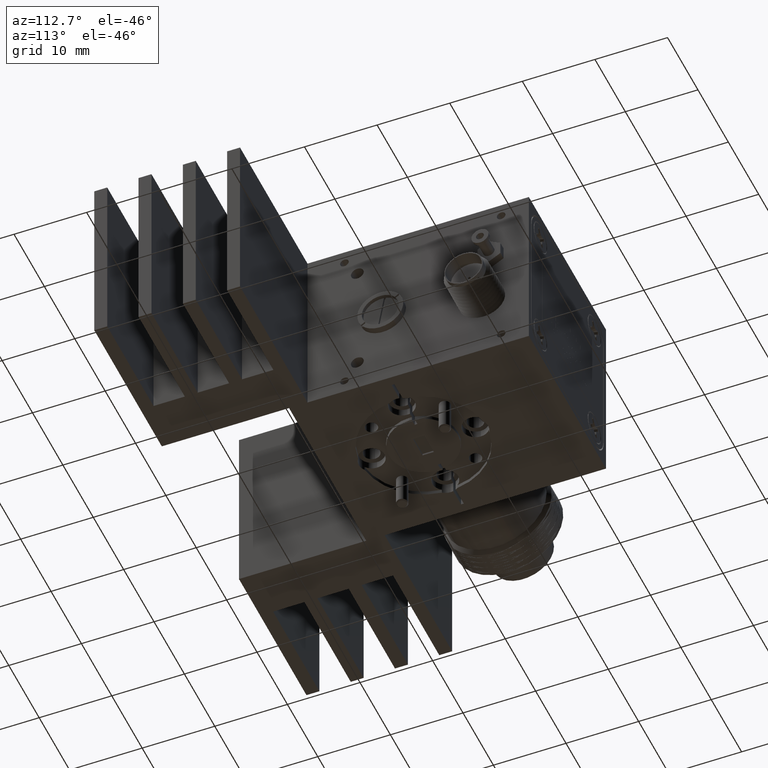
[diagram: clean part render]
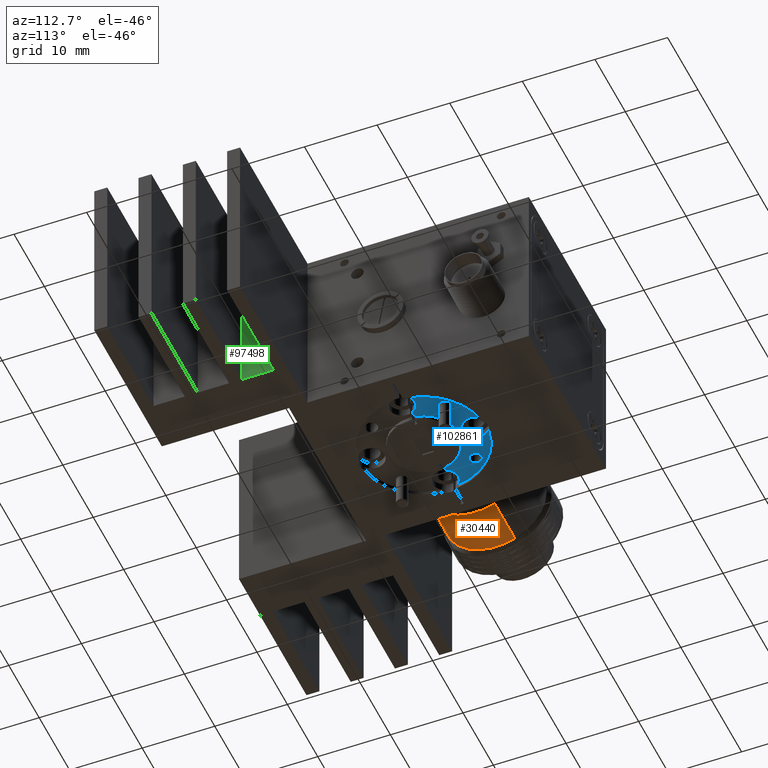
[diagram: same view with three faces highlighted in distinct colors, each labeled with its STEP entity id]
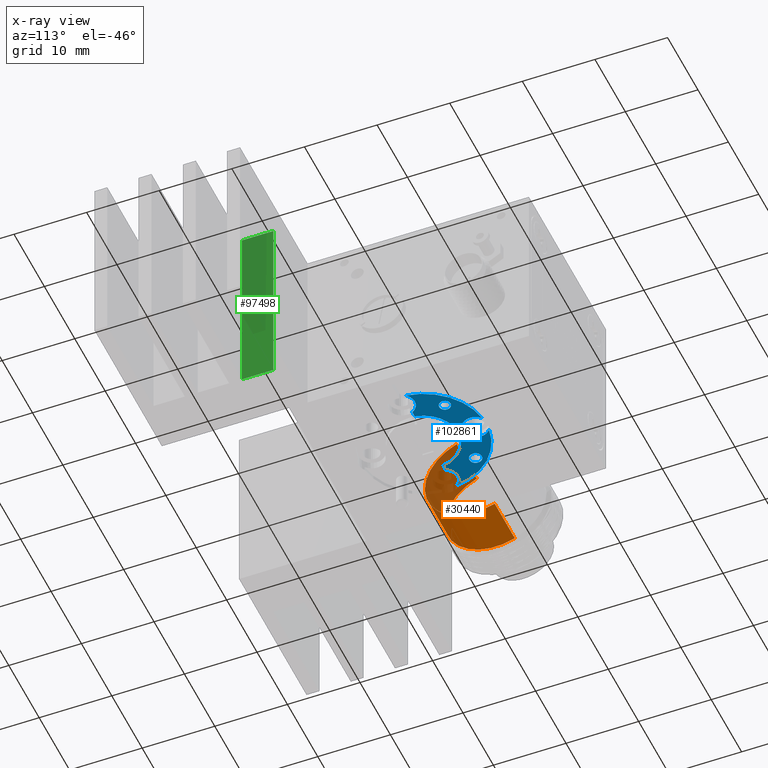
[diagram: x-ray of the same camera — body ghosted, the three highlighted faces saturated]
A machine part, auxiliary view with three faces highlighted in distinct colors.
The next image is the same camera in x-ray (body ghosted, the three faces saturated) — at least one of them is partly hidden behind the body in this view.
Their STEP definitions:

[orange] entity #30440 — the highlighted cylindrical surface (partial cylindrical patch) has radius 7.0104 mm, axis along (1, 0, 0).
#5436 = EDGE_LOOP ( 'NONE', ( #105776, #17725, #96910, #62903 ) ) ;
#9513 = CARTESIAN_POINT ( 'NONE',  ( -45.05340458212593500, 43.98519723123951800, -6.224910770532796200 ) ) ;
#11783 = CARTESIAN_POINT ( 'NONE',  ( -73.62605496333630100, 43.98519723123951800, -6.224910770532801500 ) ) ;
#12074 = EDGE_CURVE ( 'NONE', #109465, #18579, #54489, .T. ) ;
#17141 = EDGE_CURVE ( 'NONE', #18579, #34735, #29467, .T. ) ;
#17725 = ORIENTED_EDGE ( 'NONE', *, *, #12074, .T. ) ;
#18579 = VERTEX_POINT ( 'NONE', #11783 ) ;
#21419 = VECTOR ( 'NONE', #67216, 1000.000000000000000 ) ;
#22633 = CARTESIAN_POINT ( 'NONE',  ( -73.62605496333630100, 41.35817720897318100, 0.2746641357677486200 ) ) ;
#24082 = CARTESIAN_POINT ( 'NONE',  ( -67.02205496333630200, 38.73115718670683800, 6.774239042068308500 ) ) ;
#24115 = LINE ( 'NONE', #68716, #21419 ) ;
#29467 = LINE ( 'NONE', #9513, #108082 ) ;
#30440 = ADVANCED_FACE ( 'NONE', ( #43325 ), #112502, .T. ) ;
#31375 = DIRECTION ( 'NONE',  ( 1.000000000000000000, 1.121227983765158700E-016, 2.534854805195630000E-016 ) ) ;
#32680 = AXIS2_PLACEMENT_3D ( 'NONE', #22633, #31375, #40027 ) ;
#33463 = CARTESIAN_POINT ( 'NONE',  ( -67.02205496333630200, 41.35817720897318100, 0.2746641357677572800 ) ) ;
#34735 = VERTEX_POINT ( 'NONE', #94348 ) ;
#40027 = DIRECTION ( 'NONE',  ( 0.0000000000000000000, 0.3747318301760719200, -0.9271332457920444800 ) ) ;
#42910 = CARTESIAN_POINT ( 'NONE',  ( -73.62605496333630100, 38.73115718670684500, 6.774239042068300500 ) ) ;
#43325 = FACE_OUTER_BOUND ( 'NONE', #5436, .T. ) ;
#45853 = DIRECTION ( 'NONE',  ( 1.000000000000000000, 1.121227983765158700E-016, 2.534854805195630000E-016 ) ) ;
#54489 = CIRCLE ( 'NONE', #32680, 7.010400000000001500 ) ;
#59260 = DIRECTION ( 'NONE',  ( 1.000000000000000000, 1.121227983765158700E-016, 2.534854805195630000E-016 ) ) ;
#59675 = VERTEX_POINT ( 'NONE', #24082 ) ;
#62903 = ORIENTED_EDGE ( 'NONE', *, *, #70003, .F. ) ;
#66585 = DIRECTION ( 'NONE',  ( 0.0000000000000000000, 0.3747318301760719200, -0.9271332457920444800 ) ) ;
#67216 = DIRECTION ( 'NONE',  ( 1.000000000000000000, 1.121227983765158700E-016, 2.534854805195630000E-016 ) ) ;
#68716 = CARTESIAN_POINT ( 'NONE',  ( -45.05340458212593500, 38.73115718670684500, 6.774239042068304100 ) ) ;
#70003 = EDGE_CURVE ( 'NONE', #59675, #34735, #96857, .T. ) ;
#75740 = EDGE_CURVE ( 'NONE', #109465, #59675, #24115, .T. ) ;
#77049 = DIRECTION ( 'NONE',  ( 0.0000000000000000000, 0.3747318301760719200, -0.9271332457920444800 ) ) ;
#85172 = DIRECTION ( 'NONE',  ( 1.000000000000000000, 1.121227983765158700E-016, 2.534854805195630000E-016 ) ) ;
#93557 = CARTESIAN_POINT ( 'NONE',  ( -45.05340458212593500, 41.35817720897318100, 0.2746641357677537800 ) ) ;
#94348 = CARTESIAN_POINT ( 'NONE',  ( -67.02205496333630200, 43.98519723123951800, -6.224910770532793500 ) ) ;
#96857 = CIRCLE ( 'NONE', #107551, 7.010400000000001500 ) ;
#96910 = ORIENTED_EDGE ( 'NONE', *, *, #17141, .T. ) ;
#104654 = AXIS2_PLACEMENT_3D ( 'NONE', #93557, #85172, #66585 ) ;
#105776 = ORIENTED_EDGE ( 'NONE', *, *, #75740, .F. ) ;
#107551 = AXIS2_PLACEMENT_3D ( 'NONE', #33463, #59260, #77049 ) ;
#108082 = VECTOR ( 'NONE', #45853, 1000.000000000000000 ) ;
#109465 = VERTEX_POINT ( 'NONE', #42910 ) ;
#112502 = CYLINDRICAL_SURFACE ( 'NONE', #104654, 7.010400000000001500 ) ;

[blue] entity #102861 — the highlighted planar face has unit normal (0, 0, -1).
#2370 = DIRECTION ( 'NONE',  ( -0.0000000000000000000, -0.0000000000000000000, 1.000000000000000000 ) ) ;
#3929 = CIRCLE ( 'NONE', #108598, 1.777999999999994900 ) ;
#5566 = VERTEX_POINT ( 'NONE', #108577 ) ;
#5904 = CARTESIAN_POINT ( 'NONE',  ( -44.14378304933853100, 46.68897127707462900, -11.15533586423224600 ) ) ;
#6193 = DIRECTION ( 'NONE',  ( -1.000000000000000000, 0.0000000000000000000, 0.0000000000000000000 ) ) ;
#6860 = DIRECTION ( 'NONE',  ( 0.0000000000000000000, 0.0000000000000000000, -1.000000000000000000 ) ) ;
#6996 = ORIENTED_EDGE ( 'NONE', *, *, #16361, .T. ) ;
#8427 = CARTESIAN_POINT ( 'NONE',  ( -49.19517711743991800, 48.78132720897322400, -11.15533586423224600 ) ) ;
#8814 = FACE_BOUND ( 'NONE', #14773, .T. ) ;
#9272 = CARTESIAN_POINT ( 'NONE',  ( -44.49403233664450900, 42.39957720897322000, -11.15533586423224600 ) ) ;
#9528 = CIRCLE ( 'NONE', #54459, 0.8509000000000016600 ) ;
#11048 = CIRCLE ( 'NONE', #48066, 0.7810499999999984700 ) ;
#13494 = ORIENTED_EDGE ( 'NONE', *, *, #83372, .T. ) ;
#13499 = EDGE_CURVE ( 'NONE', #93131, #26975, #27199, .T. ) ;
#14773 = EDGE_LOOP ( 'NONE', ( #6996, #75270 ) ) ;
#15179 = DIRECTION ( 'NONE',  ( -1.000000000000000000, 0.0000000000000000000, 0.0000000000000000000 ) ) ;
#16361 = EDGE_CURVE ( 'NONE', #52493, #70465, #63393, .T. ) ;
#16871 = ORIENTED_EDGE ( 'NONE', *, *, #105512, .T. ) ;
#17586 = ORIENTED_EDGE ( 'NONE', *, *, #98110, .T. ) ;
#18338 = ORIENTED_EDGE ( 'NONE', *, *, #72189, .T. ) ;
#19160 = DIRECTION ( 'NONE',  ( -1.000000000000000000, 0.0000000000000000000, 0.0000000000000000000 ) ) ;
#19413 = DIRECTION ( 'NONE',  ( -0.0000000000000000000, -0.0000000000000000000, 1.000000000000000000 ) ) ;
#19437 = EDGE_CURVE ( 'NONE', #49003, #80678, #96845, .T. ) ;
#19641 = DIRECTION ( 'NONE',  ( -0.0000000000000000000, -0.0000000000000000000, 1.000000000000000000 ) ) ;
#20819 = CARTESIAN_POINT ( 'NONE',  ( -53.39567118554133900, 46.68897127707459300, -11.15533586423224600 ) ) ;
#21559 = CARTESIAN_POINT ( 'NONE',  ( -50.25602458337222300, 50.20817220897322400, -11.15533586423224600 ) ) ;
#21768 = PLANE ( 'NONE',  #89864 ) ;
#24105 = EDGE_CURVE ( 'NONE', #107333, #82194, #43447, .T. ) ;
#24354 = EDGE_CURVE ( 'NONE', #70465, #52493, #9528, .T. ) ;
#26975 = VERTEX_POINT ( 'NONE', #57278 ) ;
#27199 = CIRCLE ( 'NONE', #64104, 1.777999999999994900 ) ;
#29476 = DIRECTION ( 'NONE',  ( -1.000000000000000000, 0.0000000000000000000, 0.0000000000000000000 ) ) ;
#31049 = VERTEX_POINT ( 'NONE', #43675 ) ;
#31240 = CARTESIAN_POINT ( 'NONE',  ( -47.41717711743992000, 48.78132720897322400, -11.15533586423224600 ) ) ;
#32317 = CARTESIAN_POINT ( 'NONE',  ( -49.19517711743992500, 41.63757720897321900, -11.15533586423224600 ) ) ;
#32644 = AXIS2_PLACEMENT_3D ( 'NONE', #93757, #70959, #45496 ) ;
#32789 = DIRECTION ( 'NONE',  ( -0.0000000000000000000, -0.0000000000000000000, 1.000000000000000000 ) ) ;
#32798 = CARTESIAN_POINT ( 'NONE',  ( -54.24657118554134200, 46.68897127707459300, -11.15533586423224600 ) ) ;
#33347 = CARTESIAN_POINT ( 'NONE',  ( -48.13432965150761300, 50.20817220897322400, -11.15533586423224600 ) ) ;
#35896 = FACE_BOUND ( 'NONE', #75728, .T. ) ;
#35936 = DIRECTION ( 'NONE',  ( -1.000000000000000000, 7.805279981897887000E-015, 0.0000000000000000000 ) ) ;
#36309 = DIRECTION ( 'NONE',  ( -1.000000000000000000, 0.0000000000000000000, 0.0000000000000000000 ) ) ;
#36839 = DIRECTION ( 'NONE',  ( -1.000000000000000000, 0.0000000000000000000, 0.0000000000000000000 ) ) ;
#37548 = CIRCLE ( 'NONE', #83201, 1.778000000000001800 ) ;
#39898 = CARTESIAN_POINT ( 'NONE',  ( -54.24657118554134200, 46.68897127707459300, -11.15533586423224600 ) ) ;
#40182 = CARTESIAN_POINT ( 'NONE',  ( -49.19517711743992500, 41.63757720897321900, -11.15533586423224600 ) ) ;
#41247 = AXIS2_PLACEMENT_3D ( 'NONE', #80496, #54650, #36839 ) ;
#41674 = EDGE_CURVE ( 'NONE', #80326, #5566, #104337, .T. ) ;
#43447 = LINE ( 'NONE', #105241, #84193 ) ;
#43675 = CARTESIAN_POINT ( 'NONE',  ( -53.89632189823534200, 42.39957720897322000, -11.15533586423224600 ) ) ;
#45496 = DIRECTION ( 'NONE',  ( -1.000000000000000000, 3.902639990948943500E-015, 0.0000000000000000000 ) ) ;
#45856 = CARTESIAN_POINT ( 'NONE',  ( -49.19517711743992500, 41.63757720897321900, -11.15533586423224600 ) ) ;
#48066 = AXIS2_PLACEMENT_3D ( 'NONE', #5904, #32789, #67689 ) ;
#48696 = EDGE_CURVE ( 'NONE', #71518, #111956, #108890, .T. ) ;
#49003 = VERTEX_POINT ( 'NONE', #33347 ) ;
#49650 = AXIS2_PLACEMENT_3D ( 'NONE', #8427, #69467, #69830 ) ;
#50433 = CIRCLE ( 'NONE', #32644, 1.778000000000001800 ) ;
#51749 = EDGE_CURVE ( 'NONE', #80678, #107333, #3929, .T. ) ;
#52164 = AXIS2_PLACEMENT_3D ( 'NONE', #79572, #19641, #36309 ) ;
#52493 = VERTEX_POINT ( 'NONE', #66625 ) ;
#54144 = AXIS2_PLACEMENT_3D ( 'NONE', #40182, #6860, #15179 ) ;
#54459 = AXIS2_PLACEMENT_3D ( 'NONE', #39898, #58132, #6193 ) ;
#54650 = DIRECTION ( 'NONE',  ( 0.0000000000000000000, 0.0000000000000000000, -1.000000000000000000 ) ) ;
#56556 = LINE ( 'NONE', #100348, #70159 ) ;
#57278 = CARTESIAN_POINT ( 'NONE',  ( -57.76577211743992300, 42.69842467490551000, -11.15533586423224600 ) ) ;
#57367 = DIRECTION ( 'NONE',  ( -1.000000000000000000, 0.0000000000000000000, -0.0000000000000000000 ) ) ;
#57467 = DIRECTION ( 'NONE',  ( -1.000000000000000000, 0.0000000000000000000, 0.0000000000000000000 ) ) ;
#58132 = DIRECTION ( 'NONE',  ( -0.0000000000000000000, -0.0000000000000000000, 1.000000000000000000 ) ) ;
#58162 = ORIENTED_EDGE ( 'NONE', *, *, #13499, .T. ) ;
#61949 = AXIS2_PLACEMENT_3D ( 'NONE', #32798, #92779, #57467 ) ;
#63393 = CIRCLE ( 'NONE', #61949, 0.8509000000000016600 ) ;
#64104 = AXIS2_PLACEMENT_3D ( 'NONE', #71363, #19413, #80110 ) ;
#64825 = DIRECTION ( 'NONE',  ( -1.000000000000000000, 0.0000000000000000000, 0.0000000000000000000 ) ) ;
#65897 = ORIENTED_EDGE ( 'NONE', *, *, #41674, .T. ) ;
#66625 = CARTESIAN_POINT ( 'NONE',  ( -55.09747118554134500, 46.68897127707459300, -11.15533586423224600 ) ) ;
#67689 = DIRECTION ( 'NONE',  ( -1.000000000000000000, 0.0000000000000000000, 0.0000000000000000000 ) ) ;
#69467 = DIRECTION ( 'NONE',  ( -0.0000000000000000000, -0.0000000000000000000, 1.000000000000000000 ) ) ;
#69723 = ORIENTED_EDGE ( 'NONE', *, *, #100370, .T. ) ;
#69830 = DIRECTION ( 'NONE',  ( -1.000000000000000000, 0.0000000000000000000, 0.0000000000000000000 ) ) ;
#70159 = VECTOR ( 'NONE', #29476, 1000.000000000000000 ) ;
#70465 = VERTEX_POINT ( 'NONE', #20819 ) ;
#70497 = VERTEX_POINT ( 'NONE', #21559 ) ;
#70959 = DIRECTION ( 'NONE',  ( -0.0000000000000000000, -0.0000000000000000000, 1.000000000000000000 ) ) ;
#71363 = CARTESIAN_POINT ( 'NONE',  ( -56.33892711743991600, 41.63757720897321900, -11.15533586423224600 ) ) ;
#71518 = VERTEX_POINT ( 'NONE', #111633 ) ;
#72189 = EDGE_CURVE ( 'NONE', #5566, #80326, #11048, .T. ) ;
#73896 = DIRECTION ( 'NONE',  ( 0.0000000000000000000, 0.0000000000000000000, -1.000000000000000000 ) ) ;
#75270 = ORIENTED_EDGE ( 'NONE', *, *, #24354, .T. ) ;
#75728 = EDGE_LOOP ( 'NONE', ( #65897, #18338 ) ) ;
#78798 = CARTESIAN_POINT ( 'NONE',  ( -49.19517711743991800, 48.78132720897322400, -11.15533586423224600 ) ) ;
#79572 = CARTESIAN_POINT ( 'NONE',  ( -44.14378304933853100, 46.68897127707462900, -11.15533586423224600 ) ) ;
#80104 = ORIENTED_EDGE ( 'NONE', *, *, #95096, .F. ) ;
#80110 = DIRECTION ( 'NONE',  ( -1.000000000000000000, -3.902639990948958500E-015, 0.0000000000000000000 ) ) ;
#80326 = VERTEX_POINT ( 'NONE', #106869 ) ;
#80496 = CARTESIAN_POINT ( 'NONE',  ( -49.19517711743992500, 41.63757720897321900, -11.15533586423224600 ) ) ;
#80678 = VERTEX_POINT ( 'NONE', #111689 ) ;
#81454 = ORIENTED_EDGE ( 'NONE', *, *, #51749, .T. ) ;
#82194 = VERTEX_POINT ( 'NONE', #9272 ) ;
#83201 = AXIS2_PLACEMENT_3D ( 'NONE', #78798, #87902, #35936 ) ;
#83372 = EDGE_CURVE ( 'NONE', #111956, #49003, #50433, .T. ) ;
#84193 = VECTOR ( 'NONE', #19160, 1000.000000000000000 ) ;
#86107 = CIRCLE ( 'NONE', #87203, 4.762500000000002800 ) ;
#87203 = AXIS2_PLACEMENT_3D ( 'NONE', #45856, #73896, #64825 ) ;
#87902 = DIRECTION ( 'NONE',  ( -0.0000000000000000000, -0.0000000000000000000, 1.000000000000000000 ) ) ;
#89633 = CARTESIAN_POINT ( 'NONE',  ( -42.05142711743992100, 41.63757720897321900, -11.15533586423224600 ) ) ;
#89864 = AXIS2_PLACEMENT_3D ( 'NONE', #32317, #109283, #57367 ) ;
#91057 = ORIENTED_EDGE ( 'NONE', *, *, #24105, .T. ) ;
#92731 = EDGE_LOOP ( 'NONE', ( #69723, #99901, #13494, #98066, #81454, #91057, #80104, #17586, #58162, #16871 ) ) ;
#92779 = DIRECTION ( 'NONE',  ( -0.0000000000000000000, -0.0000000000000000000, 1.000000000000000000 ) ) ;
#93131 = VERTEX_POINT ( 'NONE', #102980 ) ;
#93757 = CARTESIAN_POINT ( 'NONE',  ( -49.19517711743991800, 48.78132720897322400, -11.15533586423224600 ) ) ;
#94488 = CARTESIAN_POINT ( 'NONE',  ( -43.65786416880545300, 42.39957720897322000, -11.15533586423224600 ) ) ;
#95096 = EDGE_CURVE ( 'NONE', #31049, #82194, #86107, .T. ) ;
#96845 = CIRCLE ( 'NONE', #54144, 8.635999999999997500 ) ;
#98066 = ORIENTED_EDGE ( 'NONE', *, *, #19437, .T. ) ;
#98110 = EDGE_CURVE ( 'NONE', #31049, #93131, #56556, .T. ) ;
#98332 = DIRECTION ( 'NONE',  ( -1.000000000000000000, 0.0000000000000000000, 0.0000000000000000000 ) ) ;
#99901 = ORIENTED_EDGE ( 'NONE', *, *, #48696, .T. ) ;
#100348 = CARTESIAN_POINT ( 'NONE',  ( -49.19517711743992500, 42.39957720897322000, -11.15533586423224600 ) ) ;
#100370 = EDGE_CURVE ( 'NONE', #70497, #71518, #37548, .T. ) ;
#100659 = CIRCLE ( 'NONE', #41247, 8.635999999999997500 ) ;
#102861 = ADVANCED_FACE ( 'NONE', ( #35896, #8814, #105095 ), #21768, .T. ) ;
#102980 = CARTESIAN_POINT ( 'NONE',  ( -54.73249006607439100, 42.39957720897322000, -11.15533586423224600 ) ) ;
#104337 = CIRCLE ( 'NONE', #52164, 0.7810499999999984700 ) ;
#105095 = FACE_OUTER_BOUND ( 'NONE', #92731, .T. ) ;
#105241 = CARTESIAN_POINT ( 'NONE',  ( -49.19517711743992500, 42.39957720897322000, -11.15533586423224600 ) ) ;
#105512 = EDGE_CURVE ( 'NONE', #26975, #70497, #100659, .T. ) ;
#106869 = CARTESIAN_POINT ( 'NONE',  ( -44.92483304933853100, 46.68897127707462900, -11.15533586423224600 ) ) ;
#107333 = VERTEX_POINT ( 'NONE', #94488 ) ;
#108577 = CARTESIAN_POINT ( 'NONE',  ( -43.36273304933853700, 46.68897127707462900, -11.15533586423224600 ) ) ;
#108598 = AXIS2_PLACEMENT_3D ( 'NONE', #89633, #2370, #98332 ) ;
#108890 = CIRCLE ( 'NONE', #49650, 1.778000000000001800 ) ;
#109283 = DIRECTION ( 'NONE',  ( 0.0000000000000000000, 0.0000000000000000000, -1.000000000000000000 ) ) ;
#111633 = CARTESIAN_POINT ( 'NONE',  ( -50.97317711743991700, 48.78132720897322400, -11.15533586423224600 ) ) ;
#111689 = CARTESIAN_POINT ( 'NONE',  ( -40.62458211743992800, 42.69842467490553200, -11.15533586423224600 ) ) ;
#111956 = VERTEX_POINT ( 'NONE', #31240 ) ;

[green] entity #97498 — the highlighted planar face has unit normal (-1, 0, 0).
#595 = VECTOR ( 'NONE', #36883, 1000.000000000000000 ) ;
#6604 = VERTEX_POINT ( 'NONE', #85152 ) ;
#8072 = DIRECTION ( 'NONE',  ( -0.0000000000000000000, -0.0000000000000000000, -1.000000000000000000 ) ) ;
#8076 = VERTEX_POINT ( 'NONE', #60378 ) ;
#9553 = CARTESIAN_POINT ( 'NONE',  ( -29.51017711743991300, 24.87357720897322400, 13.73666413576774700 ) ) ;
#12581 = CARTESIAN_POINT ( 'NONE',  ( -29.51017711743991300, 24.87357720897322400, -11.66333586423225200 ) ) ;
#18661 = ORIENTED_EDGE ( 'NONE', *, *, #47926, .F. ) ;
#20392 = CARTESIAN_POINT ( 'NONE',  ( -29.51017711743991300, 29.19157720897322900, 13.73666413576774700 ) ) ;
#28992 = LINE ( 'NONE', #40142, #69543 ) ;
#29129 = PLANE ( 'NONE',  #50268 ) ;
#33307 = CARTESIAN_POINT ( 'NONE',  ( -29.51017711743991300, 29.19157720897322900, -11.66333586423225200 ) ) ;
#36629 = EDGE_CURVE ( 'NONE', #8076, #100180, #102281, .T. ) ;
#36883 = DIRECTION ( 'NONE',  ( -0.0000000000000000000, 1.000000000000000000, -0.0000000000000000000 ) ) ;
#40142 = CARTESIAN_POINT ( 'NONE',  ( -29.51017711743991300, 29.19157720897322900, 13.73666413576774700 ) ) ;
#45196 = CARTESIAN_POINT ( 'NONE',  ( -29.51017711743991300, 29.19157720897322900, -11.66333586423225200 ) ) ;
#47822 = VERTEX_POINT ( 'NONE', #12581 ) ;
#47926 = EDGE_CURVE ( 'NONE', #6604, #8076, #28992, .T. ) ;
#48807 = VECTOR ( 'NONE', #8072, 1000.000000000000000 ) ;
#50268 = AXIS2_PLACEMENT_3D ( 'NONE', #20392, #99631, #108289 ) ;
#53450 = EDGE_LOOP ( 'NONE', ( #92951, #94871, #18661, #81354 ) ) ;
#60378 = CARTESIAN_POINT ( 'NONE',  ( -29.51017711743991300, 29.19157720897322900, 13.73666413576774700 ) ) ;
#67299 = EDGE_CURVE ( 'NONE', #47822, #100180, #73925, .T. ) ;
#69543 = VECTOR ( 'NONE', #100892, 1000.000000000000000 ) ;
#71174 = CARTESIAN_POINT ( 'NONE',  ( -29.51017711743991300, 29.19157720897322900, 13.73666413576774700 ) ) ;
#73925 = LINE ( 'NONE', #45196, #595 ) ;
#81354 = ORIENTED_EDGE ( 'NONE', *, *, #89143, .T. ) ;
#85152 = CARTESIAN_POINT ( 'NONE',  ( -29.51017711743991300, 24.87357720897322400, 13.73666413576774700 ) ) ;
#87333 = FACE_OUTER_BOUND ( 'NONE', #53450, .T. ) ;
#89143 = EDGE_CURVE ( 'NONE', #6604, #47822, #97754, .T. ) ;
#92951 = ORIENTED_EDGE ( 'NONE', *, *, #67299, .T. ) ;
#94163 = VECTOR ( 'NONE', #97752, 1000.000000000000000 ) ;
#94871 = ORIENTED_EDGE ( 'NONE', *, *, #36629, .F. ) ;
#97498 = ADVANCED_FACE ( 'NONE', ( #87333 ), #29129, .F. ) ;
#97752 = DIRECTION ( 'NONE',  ( -0.0000000000000000000, -0.0000000000000000000, -1.000000000000000000 ) ) ;
#97754 = LINE ( 'NONE', #9553, #48807 ) ;
#99631 = DIRECTION ( 'NONE',  ( -1.000000000000000000, 0.0000000000000000000, 0.0000000000000000000 ) ) ;
#100180 = VERTEX_POINT ( 'NONE', #33307 ) ;
#100892 = DIRECTION ( 'NONE',  ( -0.0000000000000000000, 1.000000000000000000, -0.0000000000000000000 ) ) ;
#102281 = LINE ( 'NONE', #71174, #94163 ) ;
#108289 = DIRECTION ( 'NONE',  ( 0.0000000000000000000, 0.0000000000000000000, 1.000000000000000000 ) ) ;